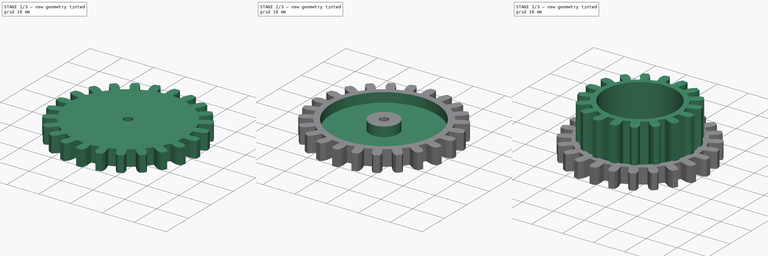
[diagram: build sequence overview — one tinted view per stage of 3, left to right]
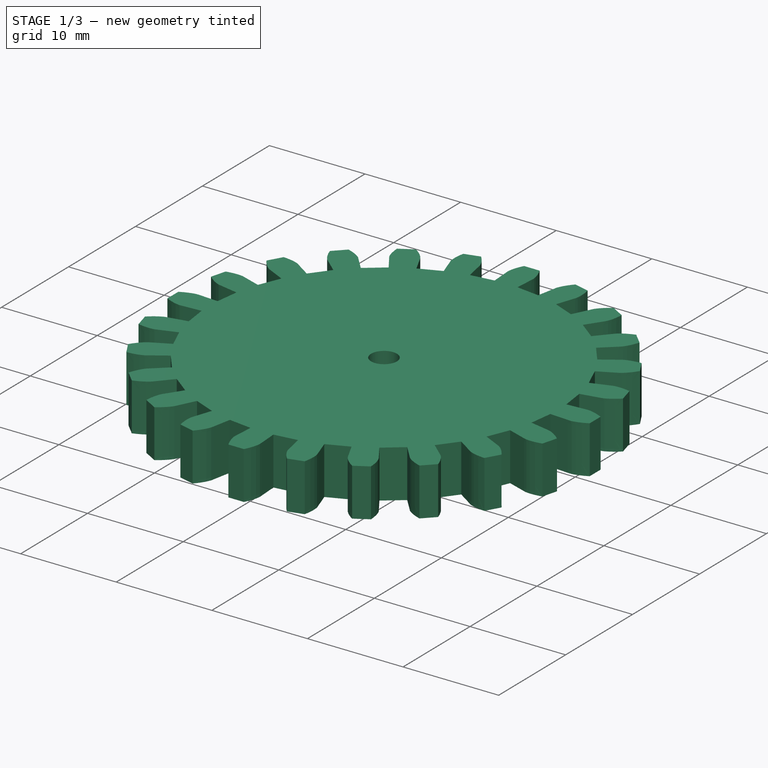
[diagram: stage 1 of 3 — iso view after this stage's code; geometry added in this stage tinted green]
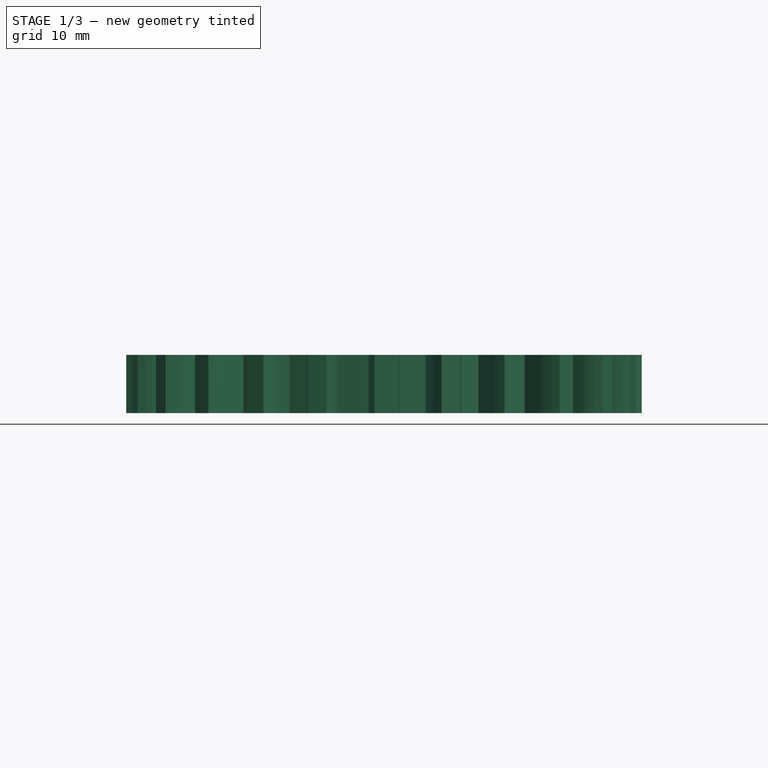
[diagram: stage 1 of 3 — front view after this stage's code; geometry added in this stage tinted green]
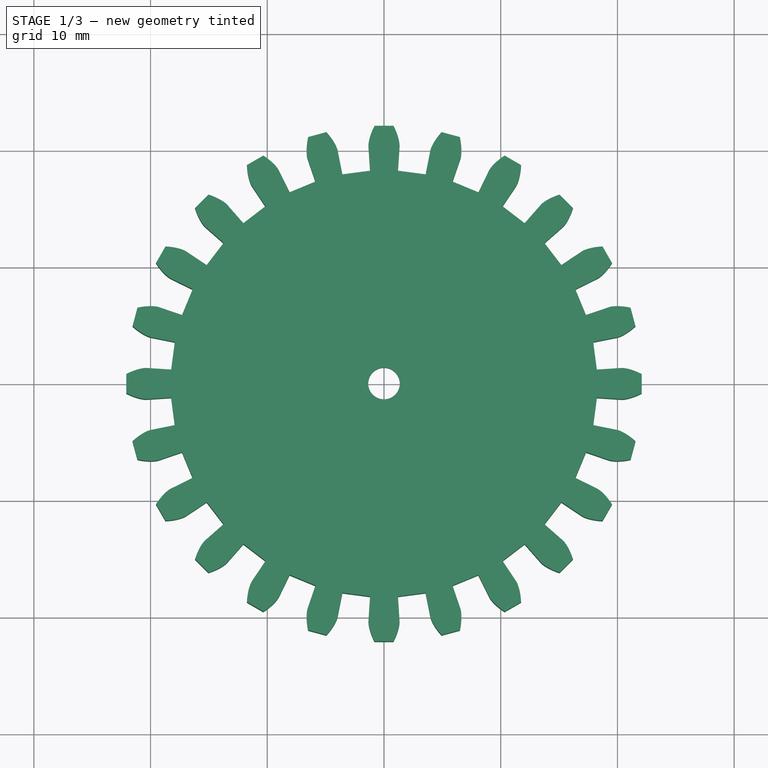
[diagram: stage 1 of 3 — top view after this stage's code; geometry added in this stage tinted green]
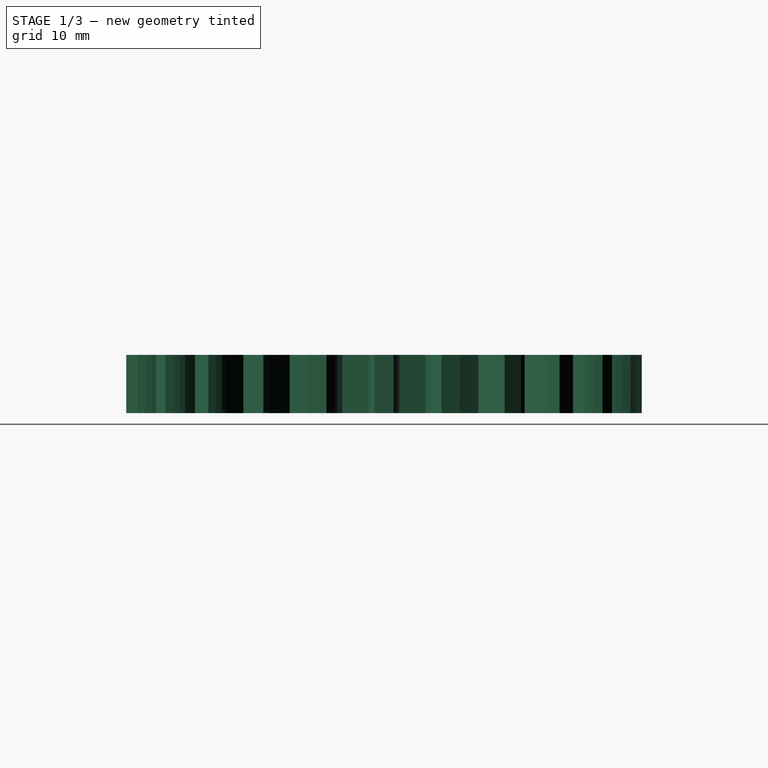
[diagram: stage 1 of 3 — right view after this stage's code; geometry added in this stage tinted green]
FCSTD DOCUMENT  (FreeCAD 0.21R33771 (Git))
Label: Gears1c
License: All rights reserved
LicenseURL: https://en.wikipedia.org/wiki/All_rights_reserved
objects: Sketcher::SketchObject×4, PartDesign::FeaturePython×2, PartDesign::Body×2, PartDesign::SubtractiveLoft×1, PartDesign::Groove×1, PartDesign::Pocket×1
note: 14 computed .brp shape members not serialized (recipe doc carries the construction recipe); baked Part::Feature solids carry a one-line shape summary decoded from their .brp

FEATURE [PartDesign::Body] Body  label="Knob"
  Group = -> [CycloidGear,Sketch,Sketch001,SubtractiveLoft]
  Origin = -> Origin
  Placement = pos=(36,0,0) rot=(0,0,1;0.174533rad)
  Tip = -> SubtractiveLoft
FEATURE [PartDesign::FeaturePython] CycloidGear001  label="ServoGear"  # WARN: FeaturePython — macro-defined, semantics opaque (R4)
  AttacherType = Attacher::AttachEngine3D
  angular_backlash = 0
  backlash = 0
  clearance = 0.25
  double_helix = false
  head = 0
  head_fillet = 0
  height = 5
  helix_angle = 0
  inner_diameter = 12
  module = 1.7
  num_teeth = 24
  numpoints = 10
  outer_diameter = 7.5
  pitch_diameter = 40.8
  root_fillet = 0
  version = 1.3.0
  expr: angular_backlash = backlash / pitch_diameter * 360 ° / pi
  expr: inner_diameter = num_teeth / 2
  expr: pitch_diameter = num_teeth * module
FEATURE [Sketcher::SketchObject] Sketch002  label="ServoAxisSketch"
  FullyConstrained = true
  MapMode = 5
  Placement = pos=(0,0,0) rot=(1,0,0;1.5708rad)
  Support = -> [XZ_Plane001]
  sketch-geometry (6):
    g0: LineSegment StartX=1.35 StartY=3 StartZ=0 EndX=2.85 EndY=3 EndZ=0
    g1: LineSegment StartX=2.85 StartY=3 StartZ=0 EndX=2.85 EndY=0 EndZ=0
    g2: LineSegment StartX=1.35 StartY=5 StartZ=0 EndX=1.35 EndY=3 EndZ=0
    g3: LineSegment StartX=1.35 StartY=5 StartZ=0 EndX=0 EndY=5 EndZ=0
    g4: LineSegment StartX=0 StartY=5 StartZ=0 EndX=0 EndY=0 EndZ=0
    g5: LineSegment StartX=0 StartY=0 StartZ=0 EndX=2.85 EndY=0 EndZ=0
  constraints (17):
    c: Horizontal(g0)
    c: Coincident(g0,g1)
    c: Coincident(g2,g0)
    c: DistanceX(g-1,g0) = 2.85
    c: DistanceX(g-1,g0) = 1.35
    c: Vertical(g2)
    c: DistanceY(g1,g1) = 3
    c: Horizontal(g3)
    c: Coincident(g3,g4)
    c: Vertical(g4)
    c: Coincident(g4,g5)
    c: Horizontal(g5)
    c: Coincident(g2,g3)
    c: Coincident(g1,g5)
    c: DistanceY(g4,g4) = 5
    c: Coincident(g4,g-1)
    c: Vertical(g1)
FEATURE [PartDesign::Groove] Groove  label="ServoAxisGroove"
  Angle = 360
  Axis = (0,-2e-16,1)
  Base = (0,0,0)
  BaseFeature = -> CycloidGear001
  Profile = -> Sketch002
  ReferenceAxis = -> Sketch002 [V_Axis]
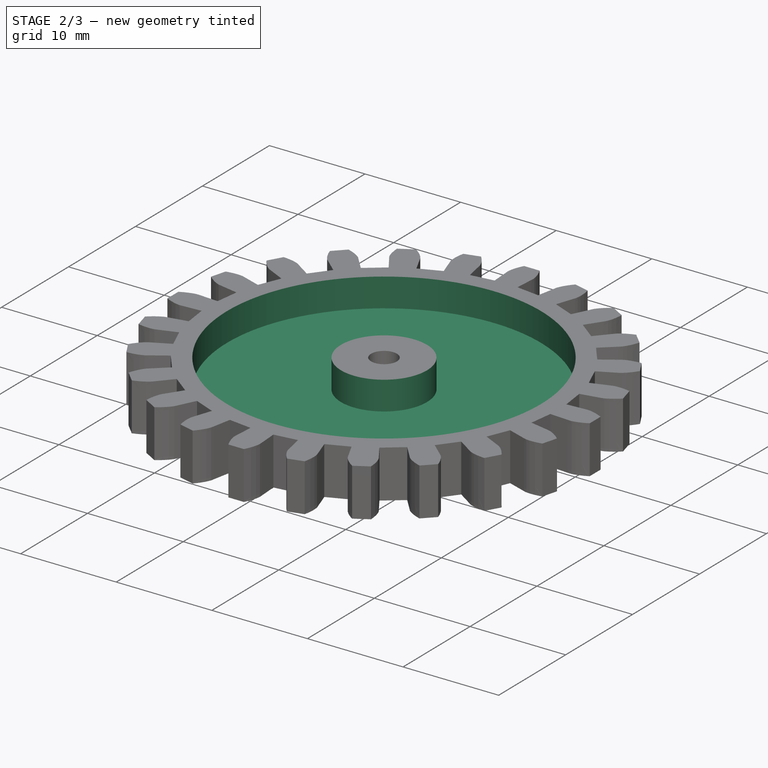
[diagram: stage 2 of 3 — iso view after this stage's code; geometry added in this stage tinted green]
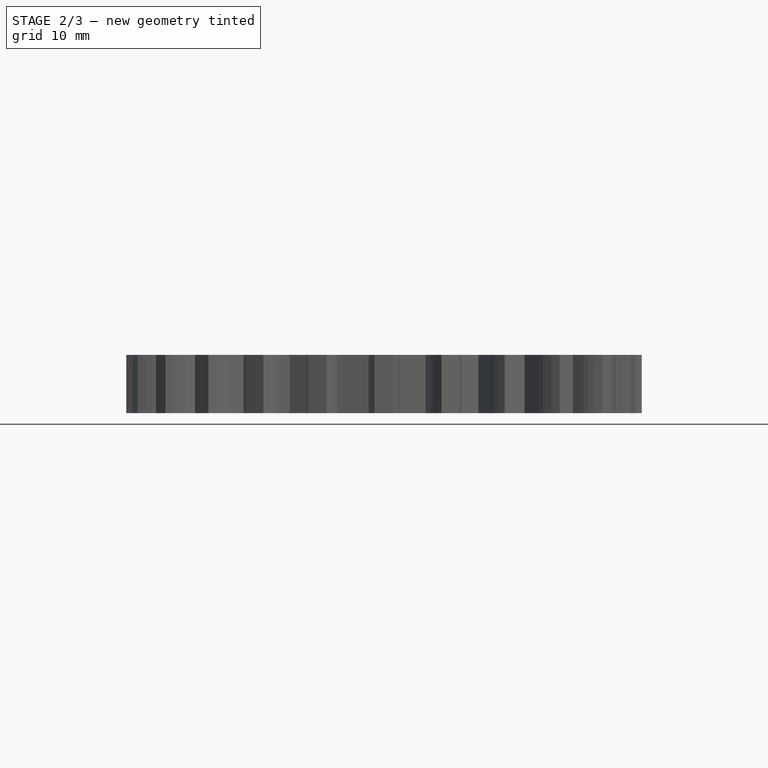
[diagram: stage 2 of 3 — front view after this stage's code; geometry added in this stage tinted green]
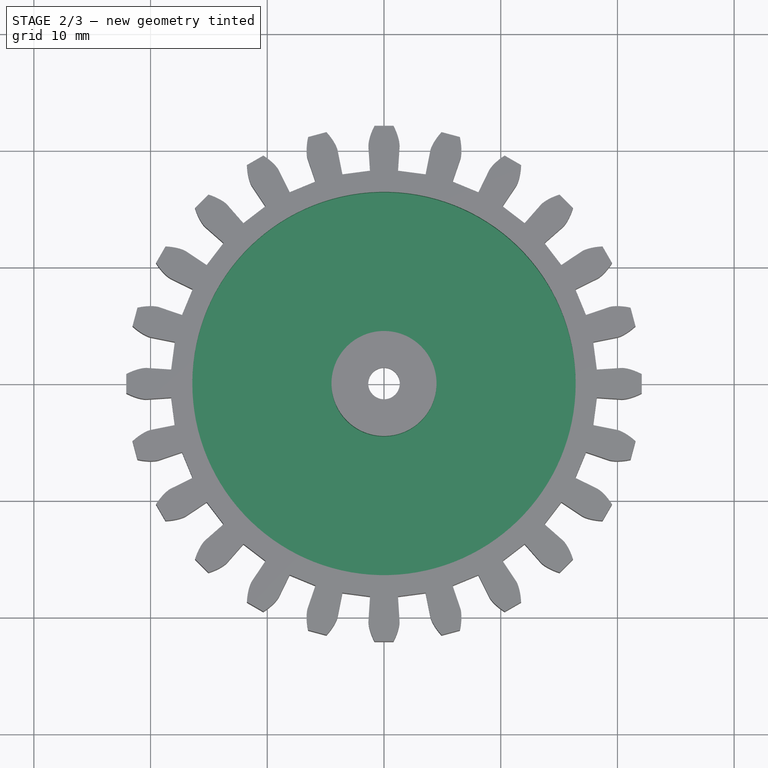
[diagram: stage 2 of 3 — top view after this stage's code; geometry added in this stage tinted green]
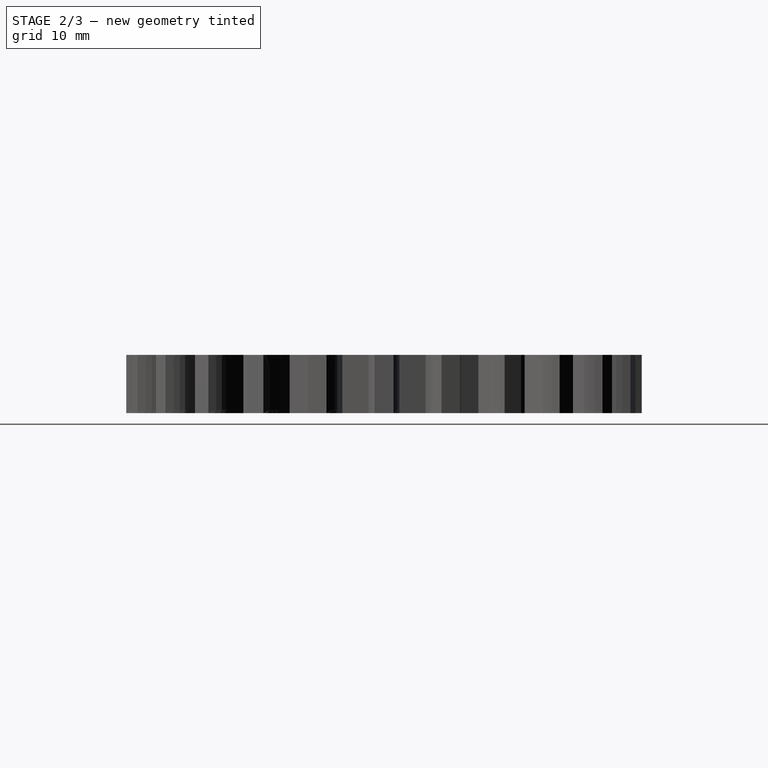
[diagram: stage 2 of 3 — right view after this stage's code; geometry added in this stage tinted green]
FEATURE [Sketcher::SketchObject] Sketch003  label="MaterialSaverSketch"
  FullyConstrained = false
  MapMode = 5
  Placement = pos=(0,0,5) rot=(0,0,1;0rad)
  Support = -> [Groove]
  sketch-geometry (2):
    g0: Circle CenterX=0 CenterY=0 CenterZ=0 NormalX=0 NormalY=0 NormalZ=1 AngleXU=0 Radius=16.4213
    g1: Circle CenterX=0 CenterY=0 CenterZ=0 NormalX=0 NormalY=0 NormalZ=1 AngleXU=0 Radius=4.5
  constraints (3):
    c: Coincident(g0,g-1)
    c: Coincident(g1,g0)
    c: Radius(g1) = 4.5
FEATURE [PartDesign::Pocket] Pocket  label="MaterialSaverPocket"
  BaseFeature = -> Groove
  Direction = (0,0,-1)
  Length = 3
  Length2 = 5
  Profile = -> Sketch003
  ReferenceAxis = -> Sketch003 [N_Axis]
  Type = 0
FEATURE [PartDesign::Body] Body001  label="Servo"
  Group = -> [CycloidGear001,Sketch002,Groove,Sketch003,Pocket]
  Origin = -> Origin001
  Tip = -> Pocket
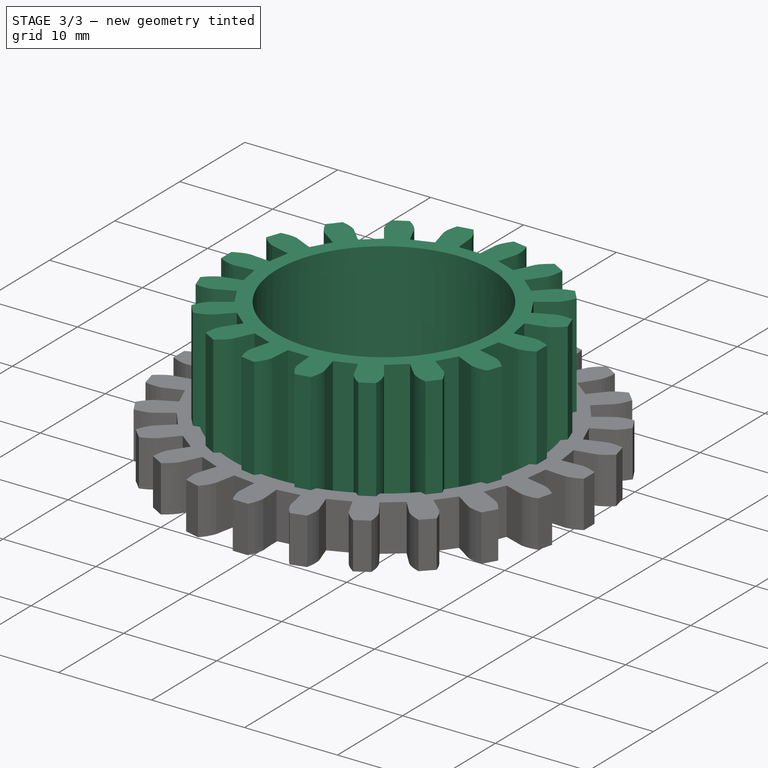
[diagram: stage 3 of 3 — iso view after this stage's code; geometry added in this stage tinted green]
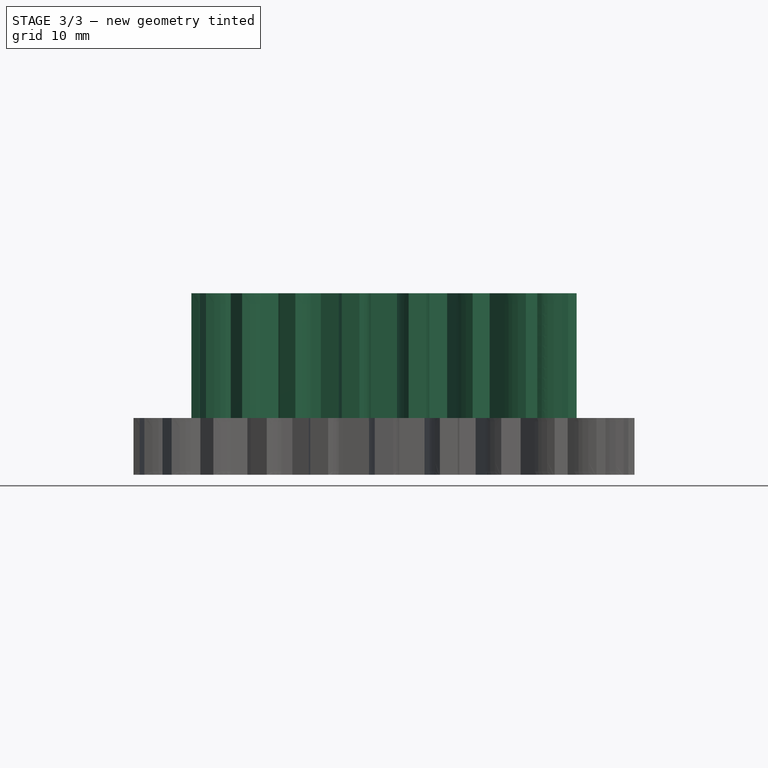
[diagram: stage 3 of 3 — front view after this stage's code; geometry added in this stage tinted green]
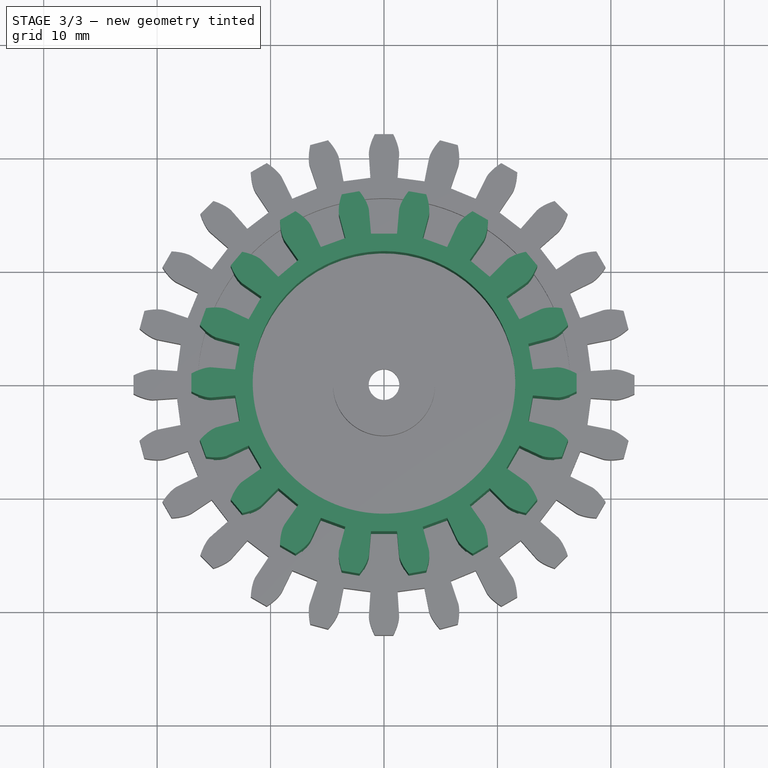
[diagram: stage 3 of 3 — top view after this stage's code; geometry added in this stage tinted green]
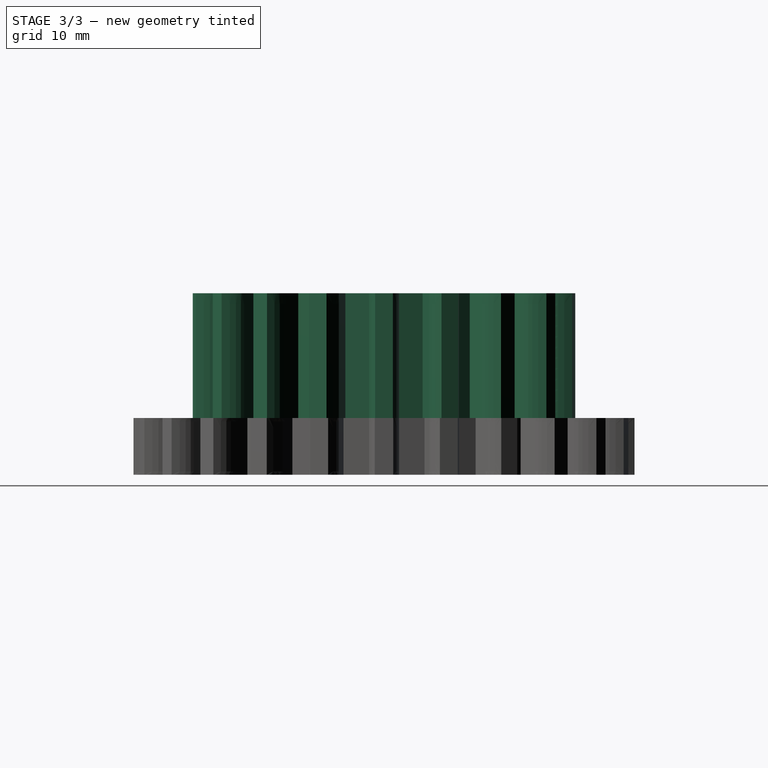
[diagram: stage 3 of 3 — right view after this stage's code; geometry added in this stage tinted green]
FEATURE [PartDesign::FeaturePython] CycloidGear  label="KnobGear"  # WARN: FeaturePython — macro-defined, semantics opaque (R4)
  AttacherType = Attacher::AttachEngine3D
  angular_backlash = 0
  backlash = 0
  clearance = 0.25
  double_helix = false
  head = 0
  head_fillet = 0
  height = 8
  helix_angle = 0
  inner_diameter = 9
  module = 1.7
  num_teeth = 18
  numpoints = 10
  outer_diameter = 7.5
  pitch_diameter = 30.6
  root_fillet = 0
  version = 1.3.0
  expr: angular_backlash = backlash / pitch_diameter * 360 ° / pi
  expr: inner_diameter = num_teeth / 2
  expr: pitch_diameter = num_teeth * module
FEATURE [Sketcher::SketchObject] Sketch  label="KnobMiddleSketch"
  FullyConstrained = true
  MapMode = 5
  Placement = pos=(0,0,16) rot=(0,0,1;0rad)
  Support = -> [CycloidGear]
  sketch-geometry (1):
    g0: Circle CenterX=0 CenterY=0 CenterZ=0 NormalX=0 NormalY=0 NormalZ=1 AngleXU=0 Radius=11.575
  constraints (2):
    c: Coincident(g0,g-1)
    c: Diameter(g0) = 23.15  'Knob Middle Diameter'
FEATURE [Sketcher::SketchObject] Sketch001  label="KnobBottomSketch"
  FullyConstrained = true
  MapMode = 5
  Placement = pos=(0,0,0) rot=(1,0,0;3.14159rad)
  Support = -> [CycloidGear]
  sketch-geometry (1):
    g0: Circle CenterX=0 CenterY=0 CenterZ=0 NormalX=0 NormalY=0 NormalZ=1 AngleXU=0 Radius=11.625
  constraints (2):
    c: Coincident(g0,g-1)
    c: Diameter(g0) = 23.25  'Knob Bottom Diameter'
FEATURE [PartDesign::SubtractiveLoft] SubtractiveLoft  label="KnobHole"
  BaseFeature = -> CycloidGear
  Closed = false
  Profile = -> Sketch
  Ruled = false
  Sections = -> [Sketch001]
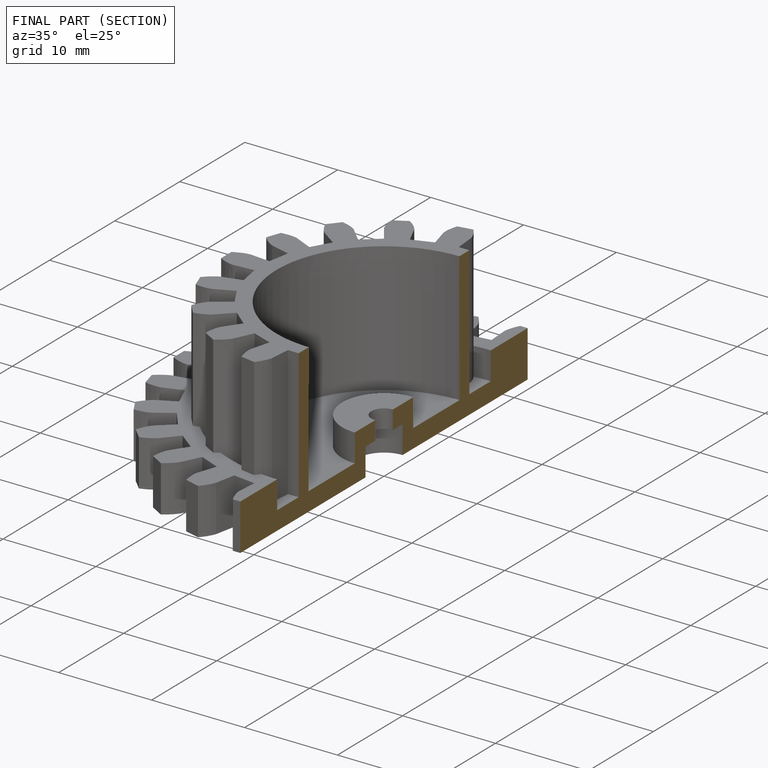
[diagram: finished part — half-section view (interior)]
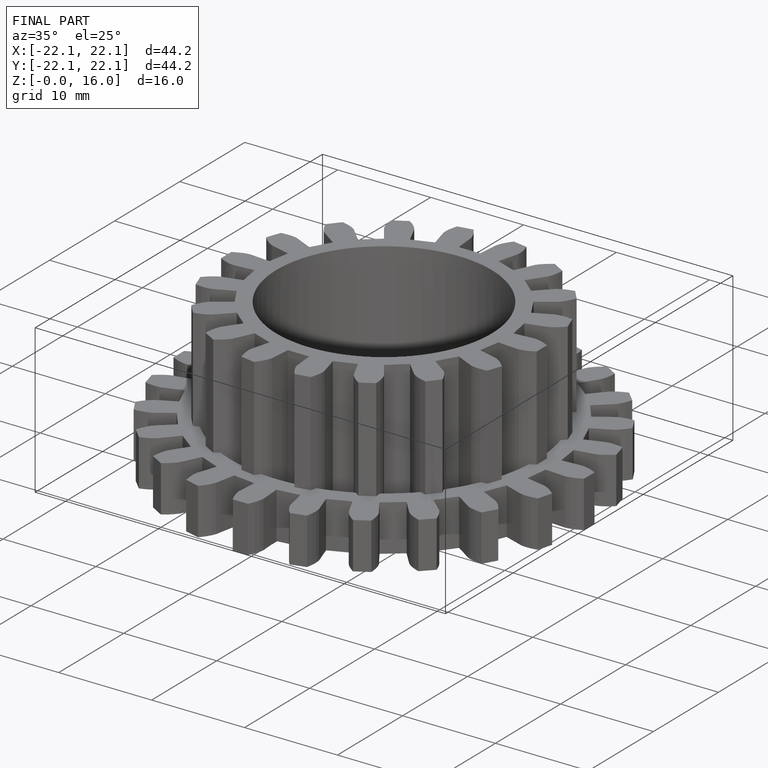
[diagram: finished part — iso view with bounding-box wireframe]
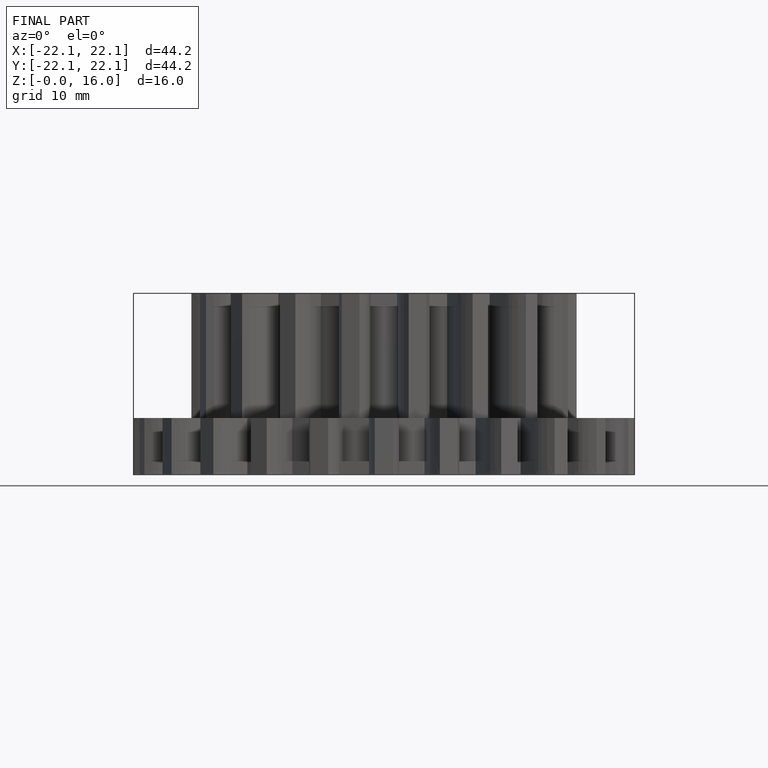
[diagram: finished part — front view with bounding-box wireframe]
